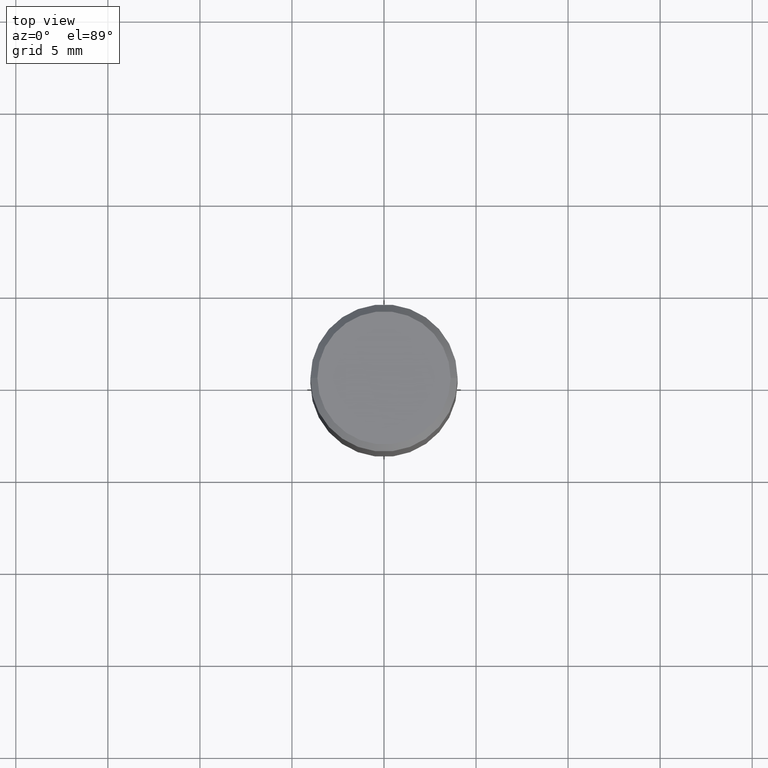
[diagram: clean part render]
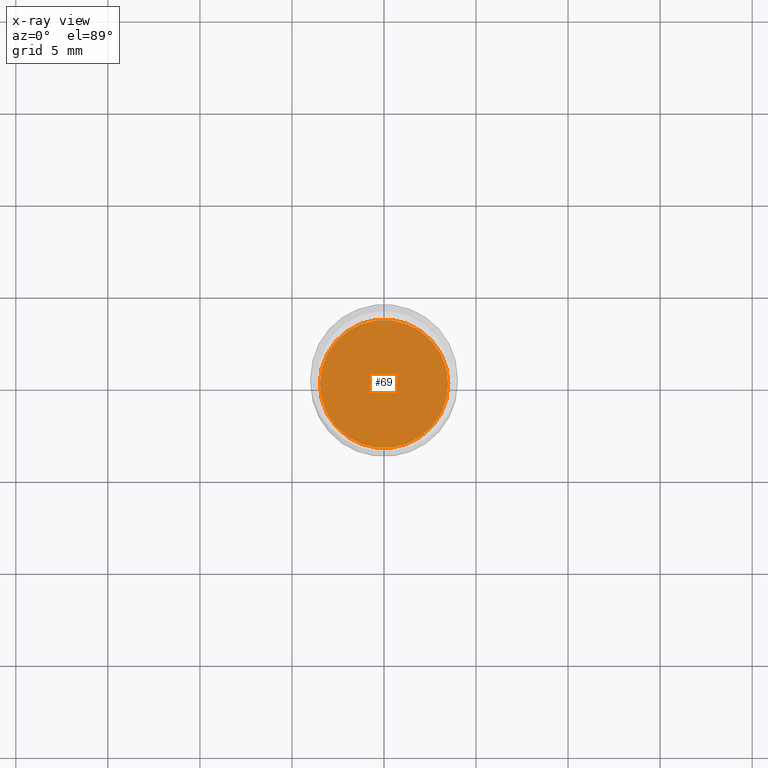
[diagram: x-ray — body ghosted, one internal face saturated and labeled with its STEP entity id]
A machine part, top view, then the same camera in x-ray: the body is ghosted and one INTERNAL B-rep face — a face not visible from any outside direction — is saturated and labeled: STEP entity #69.
In plain terms, the highlighted planar face has unit normal (-0, 0, 1).
Its self-contained STEP definition (entity closure, byte-faithful):
#22 = ORIENTED_EDGE ( 'NONE', *, *, #423, .F. ) ;
#31 = CARTESIAN_POINT ( 'NONE',  ( 1.838992542251222813E-29, -2.625593966810045497E-15, -0.7520000000000001128 ) ) ;
#57 = PLANE ( 'NONE',  #148 ) ;
#69 = ADVANCED_FACE ( 'NONE', ( #453 ), #57, .F. ) ;
#96 = CIRCLE ( 'NONE', #160, 0.1373000000000000054 ) ;
#119 = DIRECTION ( 'NONE',  ( -2.445468806185136597E-29, 3.491481338843145583E-15, 1.000000000000000000 ) ) ;
#148 = AXIS2_PLACEMENT_3D ( 'NONE', #220, #208, #366 ) ;
#160 = AXIS2_PLACEMENT_3D ( 'NONE', #31, #294, #218 ) ;
#166 = VERTEX_POINT ( 'NONE', #248 ) ;
#177 = CARTESIAN_POINT ( 'NONE',  ( 1.838992542251222813E-29, -2.625593966810045497E-15, -0.7520000000000001128 ) ) ;
#208 = DIRECTION ( 'NONE',  ( -2.438088387897960049E-29, 3.491481338843145188E-15, 1.000000000000000000 ) ) ;
#218 = DIRECTION ( 'NONE',  ( 1.000000000000000000, -6.982962677686266711E-15, 0.000000000000000000 ) ) ;
#220 = CARTESIAN_POINT ( 'NONE',  ( 1.838992542251222813E-29, -2.625593966810045497E-15, -0.7520000000000001128 ) ) ;
#248 = CARTESIAN_POINT ( 'NONE',  ( 0.1373000000000000054, -3.584354742456369967E-15, -0.7520000000000001128 ) ) ;
#258 = CARTESIAN_POINT ( 'NONE',  ( -0.1373000000000000054, -1.647369563437316505E-15, -0.7520000000000001128 ) ) ;
#294 = DIRECTION ( 'NONE',  ( -2.445468806185136597E-29, 3.491481338843145583E-15, 1.000000000000000000 ) ) ;
#296 = EDGE_LOOP ( 'NONE', ( #367, #22 ) ) ;
#325 = CIRCLE ( 'NONE', #456, 0.1373000000000000054 ) ;
#340 = VERTEX_POINT ( 'NONE', #258 ) ;
#366 = DIRECTION ( 'NONE',  ( 1.000000000000000000, -6.982962677686265922E-15, 4.876176775795935793E-29 ) ) ;
#367 = ORIENTED_EDGE ( 'NONE', *, *, #411, .F. ) ;
#376 = DIRECTION ( 'NONE',  ( 1.000000000000000000, -6.982962677686266711E-15, 0.000000000000000000 ) ) ;
#411 = EDGE_CURVE ( 'NONE', #166, #340, #96, .T. ) ;
#423 = EDGE_CURVE ( 'NONE', #340, #166, #325, .T. ) ;
#453 = FACE_OUTER_BOUND ( 'NONE', #296, .T. ) ;
#456 = AXIS2_PLACEMENT_3D ( 'NONE', #177, #119, #376 ) ;